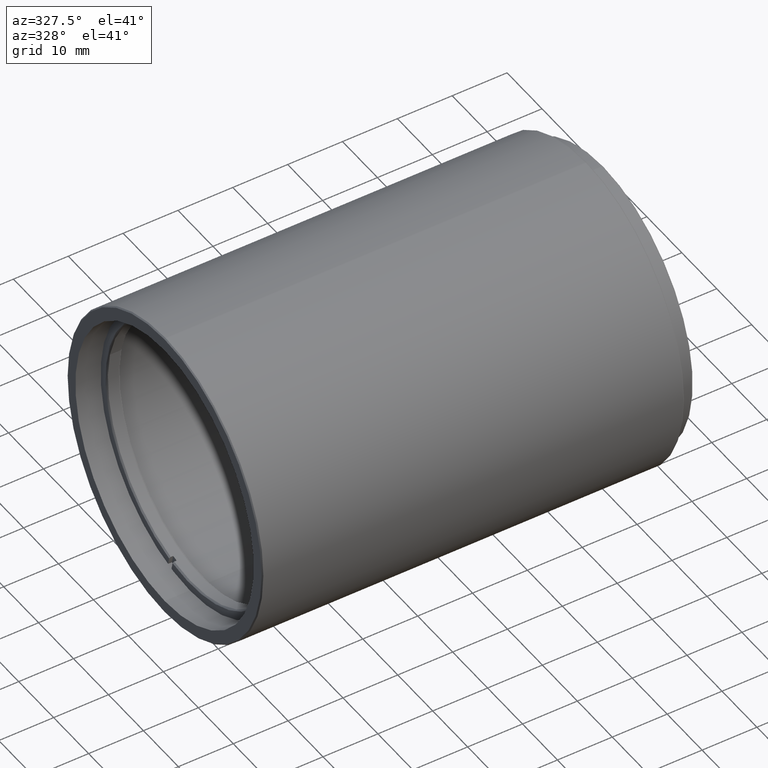
[diagram: clean part render]
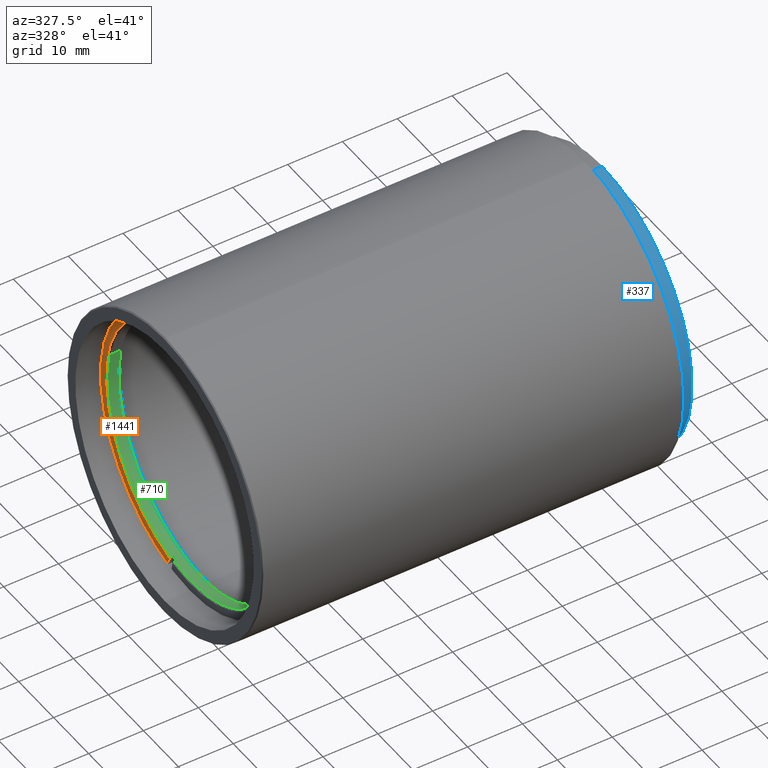
[diagram: same view with three faces highlighted in distinct colors, each labeled with its STEP entity id]
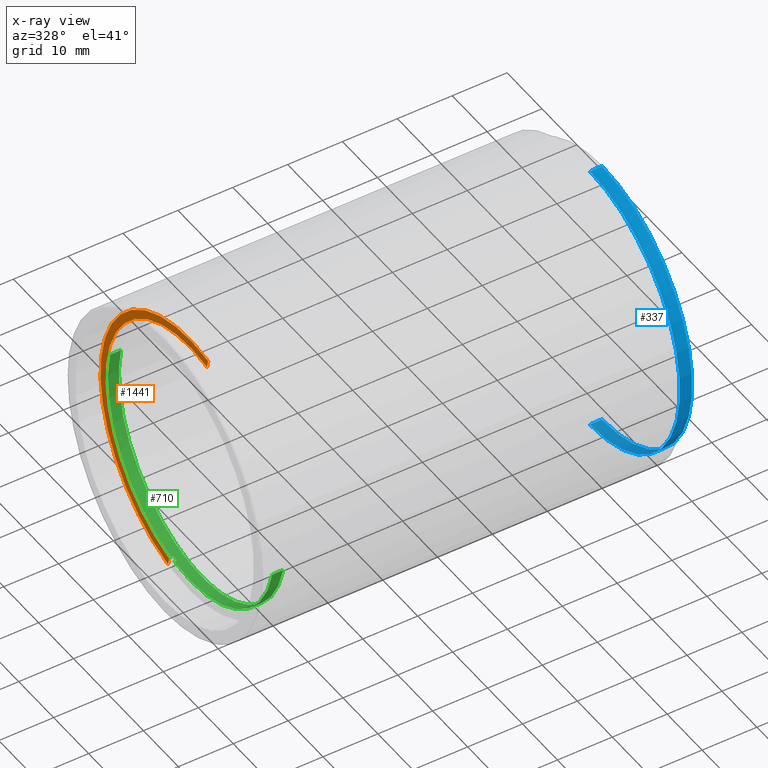
[diagram: x-ray of the same camera — body ghosted, the three highlighted faces saturated]
A machine part, auxiliary view with three faces highlighted in distinct colors.
The next image is the same camera in x-ray (body ghosted, the three faces saturated) — at least one of them is partly hidden behind the body in this view.
Their STEP definitions:

[orange] entity #1441 — the highlighted planar face has unit normal (-1, -0, 0).
#59 = CARTESIAN_POINT ( 'NONE',  ( -68.87705874751827650, -43.24820430208352917, 102.4197607421491227 ) ) ;
#79 = CARTESIAN_POINT ( 'NONE',  ( -68.87705874751827650, -25.04190444752648403, 23.58404451263794144 ) ) ;
#85 = DIRECTION ( 'NONE',  ( 0.000000000000000000, 0.2250172406149372750, -0.9743547821127781505 ) ) ;
#186 = DIRECTION ( 'NONE',  ( 0.000000000000000000, 0.2250172406149372750, -0.9743547821127781505 ) ) ;
#202 = EDGE_CURVE ( 'NONE', #939, #1222, #465, .T. ) ;
#214 = LINE ( 'NONE', #59, #1500 ) ;
#315 = ORIENTED_EDGE ( 'NONE', *, *, #366, .F. ) ;
#332 = LINE ( 'NONE', #1045, #774 ) ;
#366 = EDGE_CURVE ( 'NONE', #939, #1014, #332, .T. ) ;
#386 = FACE_OUTER_BOUND ( 'NONE', #1201, .T. ) ;
#434 = DIRECTION ( 'NONE',  ( 0.000000000000000000, -0.9743547821127781505, -0.2250172406149373860 ) ) ;
#465 = CIRCLE ( 'NONE', #1003, 24.09450000000000003 ) ;
#576 = CIRCLE ( 'NONE', #1310, 25.59450000000001069 ) ;
#599 = AXIS2_PLACEMENT_3D ( 'NONE', #806, #680, #434 ) ;
#649 = DIRECTION ( 'NONE',  ( 0.000000000000000000, -0.9743547821127780395, -0.2250172406149373860 ) ) ;
#663 = DIRECTION ( 'NONE',  ( 0.000000000000000000, -0.9743547821127781505, -0.2250172406149374693 ) ) ;
#680 = DIRECTION ( 'NONE',  ( -1.000000000000000000, -0.000000000000000000, 0.000000000000000000 ) ) ;
#681 = EDGE_CURVE ( 'NONE', #1074, #1014, #576, .T. ) ;
#774 = VECTOR ( 'NONE', #85, 1000.000000000000114 ) ;
#792 = DIRECTION ( 'NONE',  ( 1.000000000000000000, -0.000000000000000000, -0.000000000000000000 ) ) ;
#806 = CARTESIAN_POINT ( 'NONE',  ( -68.87705874751827650, -20.10857142857142321, 3.848917712323540741E-15 ) ) ;
#817 = ORIENTED_EDGE ( 'NONE', *, *, #681, .T. ) ;
#823 = ORIENTED_EDGE ( 'NONE', *, *, #202, .T. ) ;
#888 = DIRECTION ( 'NONE',  ( -1.000000000000000000, 0.000000000000000000, 0.000000000000000000 ) ) ;
#901 = CARTESIAN_POINT ( 'NONE',  ( -68.87705874751827650, -20.10857142857142321, 3.848917712323540741E-15 ) ) ;
#902 = ORIENTED_EDGE ( 'NONE', *, *, #1373, .F. ) ;
#939 = VERTEX_POINT ( 'NONE', #1575 ) ;
#1003 = AXIS2_PLACEMENT_3D ( 'NONE', #1152, #792, #663 ) ;
#1014 = VERTEX_POINT ( 'NONE', #1356 ) ;
#1045 = CARTESIAN_POINT ( 'NONE',  ( -68.87705874751827650, -43.24820430208352917, 102.4197607421491227 ) ) ;
#1074 = VERTEX_POINT ( 'NONE', #1285 ) ;
#1152 = CARTESIAN_POINT ( 'NONE',  ( -68.87705874751827650, -20.10857142857142321, 3.848917712323540741E-15 ) ) ;
#1201 = EDGE_LOOP ( 'NONE', ( #902, #817, #315, #823 ) ) ;
#1222 = VERTEX_POINT ( 'NONE', #79 ) ;
#1285 = CARTESIAN_POINT ( 'NONE',  ( -68.87705874751827650, -25.37949874446634979, 25.04587302292641127 ) ) ;
#1310 = AXIS2_PLACEMENT_3D ( 'NONE', #901, #888, #649 ) ;
#1356 = CARTESIAN_POINT ( 'NONE',  ( -68.87705874751827650, -13.86328933056381274, -24.82085578231149370 ) ) ;
#1373 = EDGE_CURVE ( 'NONE', #1074, #1222, #214, .T. ) ;
#1441 = ADVANCED_FACE ( 'NONE', ( #386 ), #1551, .T. ) ;
#1500 = VECTOR ( 'NONE', #186, 1000.000000000000114 ) ;
#1551 = PLANE ( 'NONE',  #599 ) ;
#1575 = CARTESIAN_POINT ( 'NONE',  ( -68.87705874751827650, -14.20088362750367494, -23.35902727202302742 ) ) ;

[blue] entity #337 — the highlighted cylindrical surface (partial cylindrical patch) has radius 25.8 mm, axis along (-1, -0, -0).
#54 = DIRECTION ( 'NONE',  ( 0.000000000000000000, 0.000000000000000000, -1.000000000000000000 ) ) ;
#81 = LINE ( 'NONE', #1359, #231 ) ;
#121 = CARTESIAN_POINT ( 'NONE',  ( 4.025999999999982926, -20.10857142857141966, 25.80000000000000426 ) ) ;
#199 = EDGE_CURVE ( 'NONE', #934, #357, #441, .T. ) ;
#231 = VECTOR ( 'NONE', #629, 1000.000000000000000 ) ;
#233 = ORIENTED_EDGE ( 'NONE', *, *, #509, .T. ) ;
#278 = AXIS2_PLACEMENT_3D ( 'NONE', #734, #738, #999 ) ;
#337 = ADVANCED_FACE ( 'NONE', ( #622 ), #715, .T. ) ;
#357 = VERTEX_POINT ( 'NONE', #812 ) ;
#395 = ORIENTED_EDGE ( 'NONE', *, *, #199, .T. ) ;
#401 = LINE ( 'NONE', #456, #1378 ) ;
#441 = CIRCLE ( 'NONE', #1494, 25.80000000000000426 ) ;
#456 = CARTESIAN_POINT ( 'NONE',  ( 6.525999999999982926, -20.10857142857141611, -25.80000000000000426 ) ) ;
#509 = EDGE_CURVE ( 'NONE', #1150, #1293, #810, .T. ) ;
#527 = EDGE_CURVE ( 'NONE', #1293, #934, #81, .T. ) ;
#532 = DIRECTION ( 'NONE',  ( 1.000000000000000000, 0.000000000000000000, 0.000000000000000000 ) ) ;
#584 = DIRECTION ( 'NONE',  ( -1.000000000000000000, -0.000000000000000000, -0.000000000000000000 ) ) ;
#622 = FACE_OUTER_BOUND ( 'NONE', #1016, .T. ) ;
#629 = DIRECTION ( 'NONE',  ( -1.000000000000000000, -0.000000000000000000, -0.000000000000000000 ) ) ;
#667 = CARTESIAN_POINT ( 'NONE',  ( 4.025999999999982926, -20.10857142857141966, 0.000000000000000000 ) ) ;
#715 = CYLINDRICAL_SURFACE ( 'NONE', #909, 25.80000000000000426 ) ;
#734 = CARTESIAN_POINT ( 'NONE',  ( 6.276000000000017565, -20.10857142857141966, 0.000000000000000000 ) ) ;
#738 = DIRECTION ( 'NONE',  ( -1.000000000000000000, 0.000000000000000000, 0.000000000000000000 ) ) ;
#799 = DIRECTION ( 'NONE',  ( -1.000000000000000000, -0.000000000000000000, -0.000000000000000000 ) ) ;
#810 = CIRCLE ( 'NONE', #278, 25.80000000000000426 ) ;
#812 = CARTESIAN_POINT ( 'NONE',  ( 4.025999999999982926, -20.10857142857141611, -25.80000000000000426 ) ) ;
#837 = CARTESIAN_POINT ( 'NONE',  ( 6.276000000000017565, -20.10857142857141611, -25.80000000000000426 ) ) ;
#909 = AXIS2_PLACEMENT_3D ( 'NONE', #1178, #799, #1292 ) ;
#934 = VERTEX_POINT ( 'NONE', #121 ) ;
#958 = CARTESIAN_POINT ( 'NONE',  ( 6.276000000000017565, -20.10857142857141966, 25.80000000000000426 ) ) ;
#980 = ORIENTED_EDGE ( 'NONE', *, *, #1537, .F. ) ;
#999 = DIRECTION ( 'NONE',  ( 0.000000000000000000, 0.000000000000000000, -1.000000000000000000 ) ) ;
#1016 = EDGE_LOOP ( 'NONE', ( #980, #233, #1541, #395 ) ) ;
#1150 = VERTEX_POINT ( 'NONE', #837 ) ;
#1178 = CARTESIAN_POINT ( 'NONE',  ( 6.525999999999982926, -20.10857142857141966, 0.000000000000000000 ) ) ;
#1292 = DIRECTION ( 'NONE',  ( 0.000000000000000000, 0.000000000000000000, 1.000000000000000000 ) ) ;
#1293 = VERTEX_POINT ( 'NONE', #958 ) ;
#1359 = CARTESIAN_POINT ( 'NONE',  ( 6.525999999999982926, -20.10857142857141966, 25.80000000000000426 ) ) ;
#1378 = VECTOR ( 'NONE', #584, 1000.000000000000000 ) ;
#1494 = AXIS2_PLACEMENT_3D ( 'NONE', #667, #532, #54 ) ;
#1537 = EDGE_CURVE ( 'NONE', #1150, #357, #401, .T. ) ;
#1541 = ORIENTED_EDGE ( 'NONE', *, *, #527, .T. ) ;

[green] entity #710 — the highlighted cylindrical surface (partial cylindrical patch) has radius 23.8445 mm, axis along (1, -0, 0).
#45 = CARTESIAN_POINT ( 'NONE',  ( -68.87705874751827650, -14.25715018104073906, -23.11538556100560271 ) ) ;
#52 = CIRCLE ( 'NONE', #1425, 23.84450000000000358 ) ;
#53 = DIRECTION ( 'NONE',  ( 1.000000000000000000, -0.000000000000000000, -0.000000000000000000 ) ) ;
#57 = CIRCLE ( 'NONE', #1587, 23.84450000000000358 ) ;
#67 = AXIS2_PLACEMENT_3D ( 'NONE', #1396, #1275, #418 ) ;
#89 = DIRECTION ( 'NONE',  ( 0.000000000000000000, -0.9743547821127781505, -0.2250172406149373305 ) ) ;
#115 = CARTESIAN_POINT ( 'NONE',  ( -68.62705874751826229, -43.34157403065956515, -5.365423593842870709 ) ) ;
#119 = EDGE_CURVE ( 'NONE', #410, #187, #754, .T. ) ;
#120 = CYLINDRICAL_SURFACE ( 'NONE', #67, 23.84450000000000003 ) ;
#148 = VECTOR ( 'NONE', #285, 1000.000000000000000 ) ;
#150 = CARTESIAN_POINT ( 'NONE',  ( -66.62705874751827650, 3.124431173516711624, 5.365423593842876926 ) ) ;
#162 = DIRECTION ( 'NONE',  ( -1.000000000000000000, 0.000000000000000000, -0.000000000000000000 ) ) ;
#187 = VERTEX_POINT ( 'NONE', #150 ) ;
#190 = ORIENTED_EDGE ( 'NONE', *, *, #1383, .T. ) ;
#217 = ORIENTED_EDGE ( 'NONE', *, *, #119, .F. ) ;
#221 = CIRCLE ( 'NONE', #534, 23.84450000000000358 ) ;
#255 = EDGE_CURVE ( 'NONE', #608, #703, #1179, .T. ) ;
#285 = DIRECTION ( 'NONE',  ( 1.000000000000000000, -0.000000000000000000, 0.000000000000000000 ) ) ;
#311 = DIRECTION ( 'NONE',  ( 0.000000000000000000, -0.9743547821127781505, -0.2250172406149373305 ) ) ;
#335 = VERTEX_POINT ( 'NONE', #564 ) ;
#410 = VERTEX_POINT ( 'NONE', #1211 ) ;
#418 = DIRECTION ( 'NONE',  ( 0.000000000000000000, 0.9743547821127781505, 0.2250172406149373860 ) ) ;
#448 = VERTEX_POINT ( 'NONE', #115 ) ;
#461 = CARTESIAN_POINT ( 'NONE',  ( -68.87705874751827650, -43.34157403065956515, -5.365423593842868044 ) ) ;
#507 = DIRECTION ( 'NONE',  ( 0.000000000000000000, -0.9743547821127781505, -0.2250172406149373305 ) ) ;
#533 = ORIENTED_EDGE ( 'NONE', *, *, #735, .F. ) ;
#534 = AXIS2_PLACEMENT_3D ( 'NONE', #1240, #1117, #507 ) ;
#555 = CARTESIAN_POINT ( 'NONE',  ( -68.87705874751827650, -15.23150496315351887, -23.34040280162053804 ) ) ;
#560 = DIRECTION ( 'NONE',  ( 1.000000000000000000, -0.000000000000000000, 0.000000000000000000 ) ) ;
#564 = CARTESIAN_POINT ( 'NONE',  ( -66.62705874751827650, -43.34157403065955805, -5.365423593842867156 ) ) ;
#581 = DIRECTION ( 'NONE',  ( 1.000000000000000000, -0.000000000000000000, 0.000000000000000000 ) ) ;
#586 = ORIENTED_EDGE ( 'NONE', *, *, #255, .F. ) ;
#608 = VERTEX_POINT ( 'NONE', #1151 ) ;
#625 = ORIENTED_EDGE ( 'NONE', *, *, #1130, .T. ) ;
#665 = DIRECTION ( 'NONE',  ( -1.000000000000000000, 0.000000000000000000, 0.000000000000000000 ) ) ;
#703 = VERTEX_POINT ( 'NONE', #1041 ) ;
#704 = VECTOR ( 'NONE', #581, 1000.000000000000000 ) ;
#710 = ADVANCED_FACE ( 'NONE', ( #1066 ), #120, .F. ) ;
#714 = AXIS2_PLACEMENT_3D ( 'NONE', #994, #53, #89 ) ;
#717 = ORIENTED_EDGE ( 'NONE', *, *, #1157, .T. ) ;
#735 = EDGE_CURVE ( 'NONE', #1432, #1456, #1023, .T. ) ;
#746 = CIRCLE ( 'NONE', #714, 23.84450000000000358 ) ;
#754 = LINE ( 'NONE', #1000, #148 ) ;
#769 = VECTOR ( 'NONE', #560, 1000.000000000000000 ) ;
#770 = EDGE_CURVE ( 'NONE', #1432, #448, #57, .T. ) ;
#775 = EDGE_LOOP ( 'NONE', ( #1139, #625, #190, #217, #717, #586, #779, #533 ) ) ;
#779 = ORIENTED_EDGE ( 'NONE', *, *, #960, .T. ) ;
#785 = CARTESIAN_POINT ( 'NONE',  ( -68.62705874751826229, -20.10857142857142321, 3.848917712323540741E-15 ) ) ;
#813 = VECTOR ( 'NONE', #162, 1000.000000000000000 ) ;
#920 = LINE ( 'NONE', #461, #704 ) ;
#937 = CARTESIAN_POINT ( 'NONE',  ( -68.62705874751826229, -15.23150496315351887, -23.34040280162053804 ) ) ;
#960 = EDGE_CURVE ( 'NONE', #608, #1456, #221, .T. ) ;
#994 = CARTESIAN_POINT ( 'NONE',  ( -66.62705874751827650, -20.10857142857142321, 3.848917712323540741E-15 ) ) ;
#1000 = CARTESIAN_POINT ( 'NONE',  ( -68.87705874751827650, 3.124431173516715177, 5.365423593842877814 ) ) ;
#1023 = LINE ( 'NONE', #555, #769 ) ;
#1041 = CARTESIAN_POINT ( 'NONE',  ( -68.62705874751826229, -14.25715018104073906, -23.11538556100560271 ) ) ;
#1066 = FACE_OUTER_BOUND ( 'NONE', #775, .T. ) ;
#1076 = DIRECTION ( 'NONE',  ( -1.000000000000000000, 0.000000000000000000, 0.000000000000000000 ) ) ;
#1117 = DIRECTION ( 'NONE',  ( -1.000000000000000000, 0.000000000000000000, 0.000000000000000000 ) ) ;
#1130 = EDGE_CURVE ( 'NONE', #448, #335, #920, .T. ) ;
#1139 = ORIENTED_EDGE ( 'NONE', *, *, #770, .T. ) ;
#1151 = CARTESIAN_POINT ( 'NONE',  ( -68.17705874751827366, -14.25715018104073906, -23.11538556100560271 ) ) ;
#1157 = EDGE_CURVE ( 'NONE', #410, #703, #52, .T. ) ;
#1175 = CARTESIAN_POINT ( 'NONE',  ( -68.17705874751827366, -15.23150496315351887, -23.34040280162053804 ) ) ;
#1179 = LINE ( 'NONE', #45, #813 ) ;
#1192 = DIRECTION ( 'NONE',  ( 0.000000000000000000, -0.9743547821127781505, -0.2250172406149373305 ) ) ;
#1211 = CARTESIAN_POINT ( 'NONE',  ( -68.62705874751826229, 3.124431173516711624, 5.365423593842876926 ) ) ;
#1240 = CARTESIAN_POINT ( 'NONE',  ( -68.17705874751827366, -20.10857142857142321, 3.848917712323540741E-15 ) ) ;
#1275 = DIRECTION ( 'NONE',  ( 1.000000000000000000, -0.000000000000000000, 0.000000000000000000 ) ) ;
#1383 = EDGE_CURVE ( 'NONE', #335, #187, #746, .T. ) ;
#1396 = CARTESIAN_POINT ( 'NONE',  ( -68.87705874751827650, -20.10857142857142321, 3.848917712323540741E-15 ) ) ;
#1425 = AXIS2_PLACEMENT_3D ( 'NONE', #1449, #1076, #1192 ) ;
#1432 = VERTEX_POINT ( 'NONE', #937 ) ;
#1449 = CARTESIAN_POINT ( 'NONE',  ( -68.62705874751826229, -20.10857142857142321, 3.848917712323540741E-15 ) ) ;
#1456 = VERTEX_POINT ( 'NONE', #1175 ) ;
#1587 = AXIS2_PLACEMENT_3D ( 'NONE', #785, #665, #311 ) ;